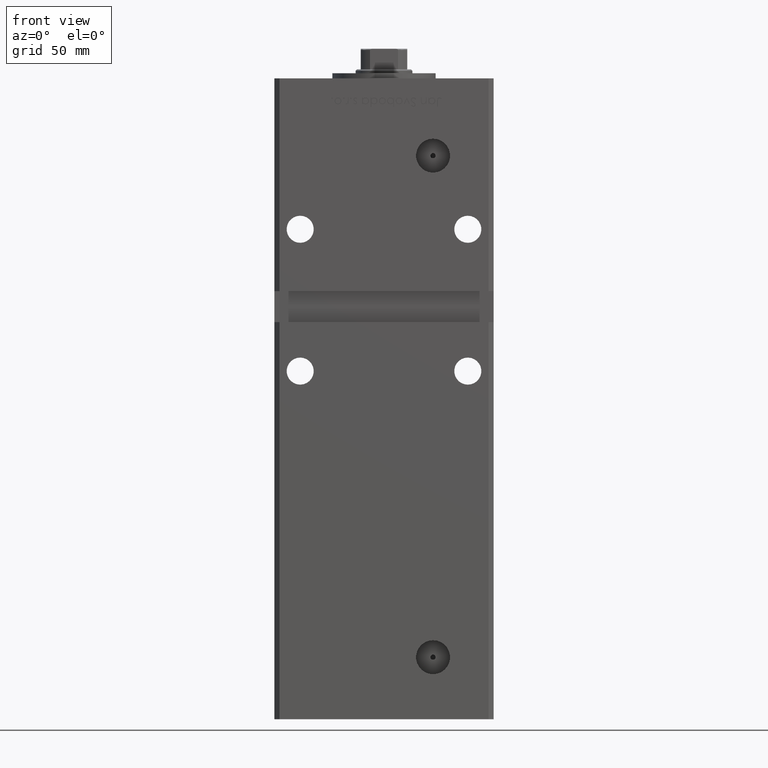
[diagram: clean part render]
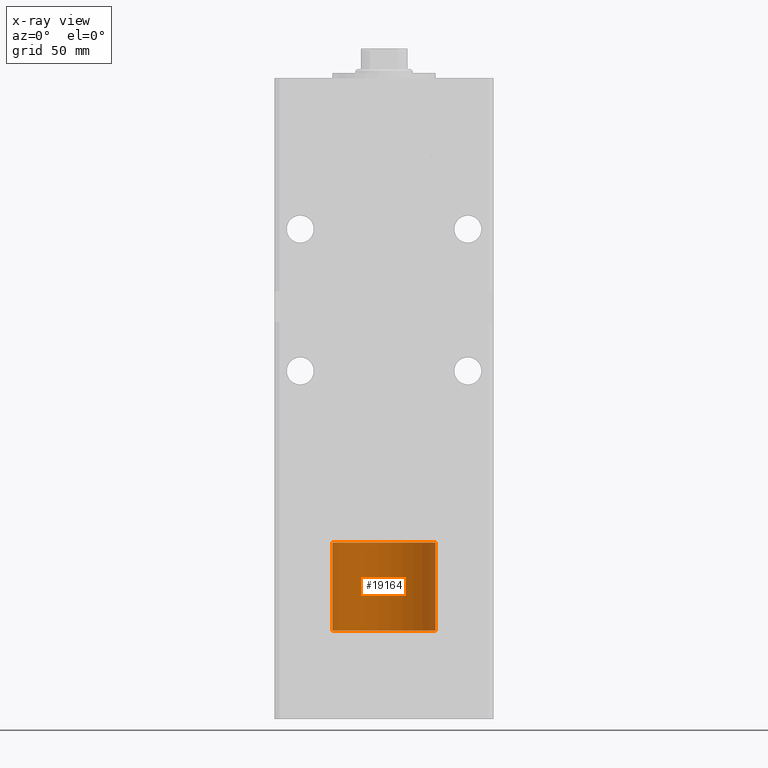
[diagram: x-ray — body ghosted, one internal face saturated and labeled with its STEP entity id]
A machine part, front view, then the same camera in x-ray: the body is ghosted and one INTERNAL B-rep face — a face not visible from any outside direction — is saturated and labeled: STEP entity #19164.
In plain terms, the highlighted cylindrical surface (partial cylindrical patch) has radius 20 mm, axis along (-0, -0, -1).
Its self-contained STEP definition (entity closure, byte-faithful):
#2512 = LINE ( 'NONE', #35355, #51060 ) ;
#6080 = DIRECTION ( 'NONE',  ( 0.000000000000000000, 0.000000000000000000, 1.000000000000000000 ) ) ;
#8170 = CARTESIAN_POINT ( 'NONE',  ( 20.00000000000000000, 2.449293598294706513E-15, 34.25000000000000000 ) ) ;
#9599 = CARTESIAN_POINT ( 'NONE',  ( 0.000000000000000000, 0.000000000000000000, 0.000000000000000000 ) ) ;
#9981 = FACE_OUTER_BOUND ( 'NONE', #45219, .T. ) ;
#10131 = CIRCLE ( 'NONE', #37619, 20.00000000000000000 ) ;
#11024 = CYLINDRICAL_SURFACE ( 'NONE', #13314, 20.00000000000000000 ) ;
#13314 = AXIS2_PLACEMENT_3D ( 'NONE', #51642, #31214, #22883 ) ;
#15309 = CARTESIAN_POINT ( 'NONE',  ( 0.000000000000000000, 0.000000000000000000, 34.25000000000000000 ) ) ;
#16248 = ORIENTED_EDGE ( 'NONE', *, *, #40178, .F. ) ;
#16835 = EDGE_CURVE ( 'NONE', #17915, #50449, #2512, .T. ) ;
#17070 = EDGE_CURVE ( 'NONE', #39183, #35807, #36844, .T. ) ;
#17915 = VERTEX_POINT ( 'NONE', #8170 ) ;
#18835 = DIRECTION ( 'NONE',  ( 0.000000000000000000, 0.000000000000000000, 1.000000000000000000 ) ) ;
#19164 = ADVANCED_FACE ( 'NONE', ( #9981 ), #11024, .T. ) ;
#20974 = DIRECTION ( 'NONE',  ( -0.000000000000000000, -0.000000000000000000, -1.000000000000000000 ) ) ;
#21228 = CARTESIAN_POINT ( 'NONE',  ( -20.00000000000000000, 0.000000000000000000, 0.000000000000000000 ) ) ;
#22883 = DIRECTION ( 'NONE',  ( -1.000000000000000000, 0.000000000000000000, 0.000000000000000000 ) ) ;
#23240 = DIRECTION ( 'NONE',  ( -0.000000000000000000, -0.000000000000000000, -1.000000000000000000 ) ) ;
#26153 = EDGE_CURVE ( 'NONE', #50449, #35807, #10131, .T. ) ;
#29020 = CARTESIAN_POINT ( 'NONE',  ( -20.00000000000000000, 0.000000000000000000, 34.25000000000000000 ) ) ;
#30303 = DIRECTION ( 'NONE',  ( 1.000000000000000000, 0.000000000000000000, 0.000000000000000000 ) ) ;
#30598 = CARTESIAN_POINT ( 'NONE',  ( -20.00000000000000000, 0.000000000000000000, 34.25000000000000000 ) ) ;
#31214 = DIRECTION ( 'NONE',  ( -0.000000000000000000, -0.000000000000000000, -1.000000000000000000 ) ) ;
#33056 = VECTOR ( 'NONE', #20974, 1000.000000000000000 ) ;
#35355 = CARTESIAN_POINT ( 'NONE',  ( 20.00000000000000000, 2.449293598294706513E-15, 34.25000000000000000 ) ) ;
#35807 = VERTEX_POINT ( 'NONE', #21228 ) ;
#36156 = CIRCLE ( 'NONE', #49889, 20.00000000000000000 ) ;
#36844 = LINE ( 'NONE', #29020, #33056 ) ;
#37619 = AXIS2_PLACEMENT_3D ( 'NONE', #9599, #6080, #30303 ) ;
#39183 = VERTEX_POINT ( 'NONE', #30598 ) ;
#40178 = EDGE_CURVE ( 'NONE', #17915, #39183, #36156, .T. ) ;
#45219 = EDGE_LOOP ( 'NONE', ( #16248, #52606, #49127, #48795 ) ) ;
#47234 = CARTESIAN_POINT ( 'NONE',  ( 20.00000000000000000, 2.449293598294706513E-15, 0.000000000000000000 ) ) ;
#48795 = ORIENTED_EDGE ( 'NONE', *, *, #17070, .F. ) ;
#49127 = ORIENTED_EDGE ( 'NONE', *, *, #26153, .T. ) ;
#49889 = AXIS2_PLACEMENT_3D ( 'NONE', #15309, #18835, #52417 ) ;
#50449 = VERTEX_POINT ( 'NONE', #47234 ) ;
#51060 = VECTOR ( 'NONE', #23240, 1000.000000000000000 ) ;
#51642 = CARTESIAN_POINT ( 'NONE',  ( 0.000000000000000000, 0.000000000000000000, 34.25000000000000000 ) ) ;
#52417 = DIRECTION ( 'NONE',  ( 1.000000000000000000, 0.000000000000000000, 0.000000000000000000 ) ) ;
#52606 = ORIENTED_EDGE ( 'NONE', *, *, #16835, .T. ) ;